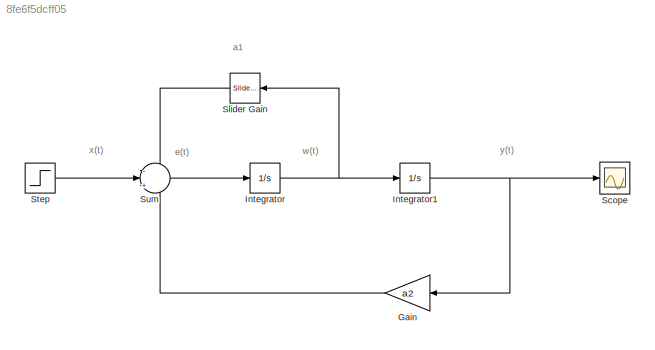
MODEL slx_8fe6f5dcff05
KIND model
CONFIG AbsTol = auto
CONFIG EnableMultiTasking = off
CONFIG FixedStep = auto
CONFIG MaxStep = auto
CONFIG MinStep = auto
CONFIG RelTol = 1e-3
CONFIG SampleTimeConstraint = Unconstrained
CONFIG SolverName = VariableStepAuto
CONFIG StartTime = 0.0
CONFIG StopTime = 10.0
BLOCK [Gain] Gain
  Gain = a2
BLOCK [Integrator] Integrator
BLOCK [Integrator] Integrator1
BLOCK [Scope] Scope
  Floating = off
  NumInputPorts = 1
  ScopeSpecificationString = Simulink.scopes.TimeScopeBlockCfg('CurrentConfiguration', extmgr.ConfigurationSet(extmgr.Configuration('Core','General UI',true),extmgr.Configuration('Core','Source UI',true),extmgr.Configuration('Sources','WiredSimulink',true),extmgr.Configuration('Visuals','Time Domain',true,'SerializedDisplays',{struct('MinYLimReal','-0.01389','MaxYLimReal','0.125','YLabelReal','','MinYLimMag','0.00000','MaxYLi...<+1352ch>
BLOCK [Reference] Slider Gain  REF=simulink/Math
Operations/Slider
Gain
  SourceBlock = simulink/Math\nOperations/Slider\nGain
  SourceType = Slider Gain
BLOCK [Step] Step
  SampleTime = 0
BLOCK [Sum] Sum
  Inputs = -|+|-
ANNOTATION (root): a1
ANNOTATION (root): e(t)
ANNOTATION (root): w(t)
ANNOTATION (root): x(t)
ANNOTATION (root): y(t)
LINE Gain:1 -> Sum:3
NET Integrator1:1 -> Gain:1, Scope:1
NET Integrator:1 -> Integrator1:1, Slider Gain:1
LINE Slider Gain:1 -> Sum:1
LINE Step:1 -> Sum:2
LINE Sum:1 -> Integrator:1
note: NET lines group one-source signal fan-out (src -> all destinations, sorted); 1:1 wires keep LINE
